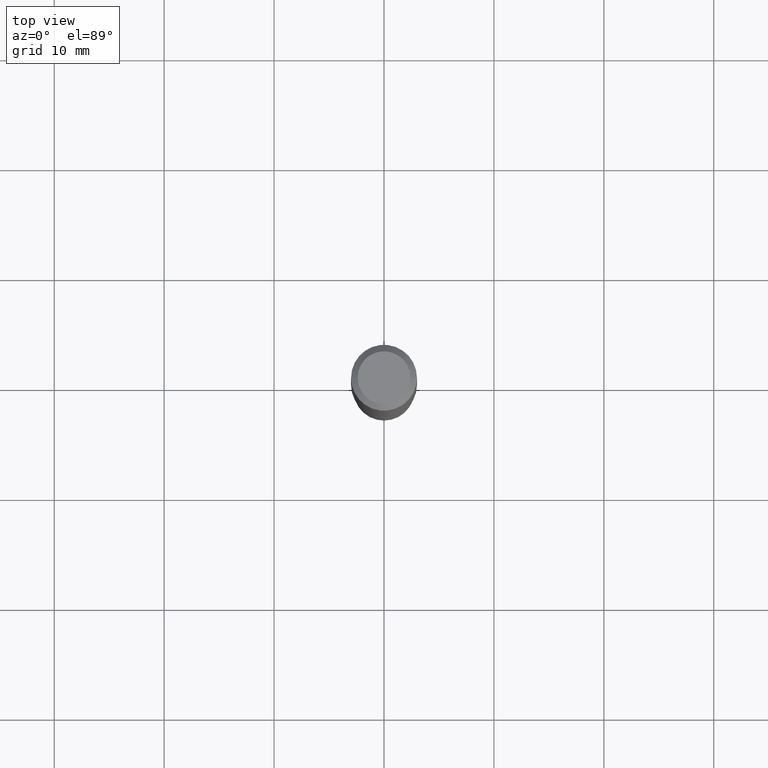
[diagram: clean part render]
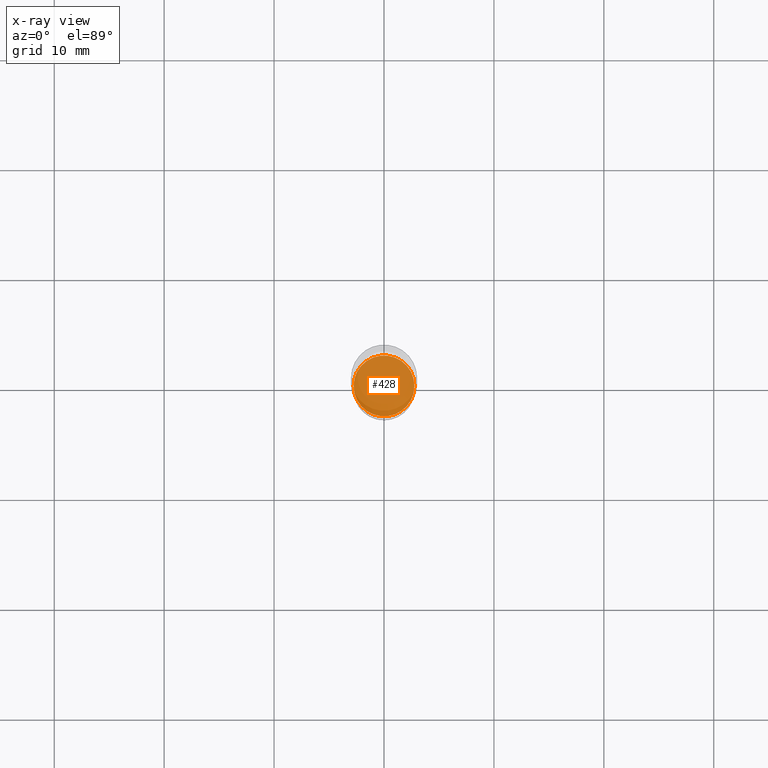
[diagram: x-ray — body ghosted, one internal face saturated and labeled with its STEP entity id]
A machine part, top view, then the same camera in x-ray: the body is ghosted and one INTERNAL B-rep face — a face not visible from any outside direction — is saturated and labeled: STEP entity #428.
In plain terms, the highlighted planar face has unit normal (-0, 0, 1).
Its self-contained STEP definition (entity closure, byte-faithful):
#3 = EDGE_CURVE ( 'NONE', #178, #109, #97, .T. ) ;
#8 = AXIS2_PLACEMENT_3D ( 'NONE', #412, #384, #194 ) ;
#30 = ORIENTED_EDGE ( 'NONE', *, *, #3, .F. ) ;
#42 = DIRECTION ( 'NONE',  ( 1.000000000000000000, -6.982962677686264344E-15, 0.000000000000000000 ) ) ;
#70 = AXIS2_PLACEMENT_3D ( 'NONE', #460, #303, #120 ) ;
#97 = CIRCLE ( 'NONE', #301, 0.1088999999999999968 ) ;
#109 = VERTEX_POINT ( 'NONE', #243 ) ;
#120 = DIRECTION ( 'NONE',  ( 1.000000000000000000, -6.982962677686264344E-15, 0.000000000000000000 ) ) ;
#178 = VERTEX_POINT ( 'NONE', #247 ) ;
#194 = DIRECTION ( 'NONE',  ( 1.000000000000000000, -6.982962677686265922E-15, 4.876176775795935793E-29 ) ) ;
#243 = CARTESIAN_POINT ( 'NONE',  ( -0.1088999999999999968, -5.210761933431365017E-15, -1.714799999999999880 ) ) ;
#247 = CARTESIAN_POINT ( 'NONE',  ( 0.1088999999999999968, -6.747636835448259862E-15, -1.714799999999999880 ) ) ;
#274 = PLANE ( 'NONE',  #8 ) ;
#301 = AXIS2_PLACEMENT_3D ( 'NONE', #305, #381, #42 ) ;
#303 = DIRECTION ( 'NONE',  ( -2.445468806185136597E-29, 3.491481338843145583E-15, 1.000000000000000000 ) ) ;
#305 = CARTESIAN_POINT ( 'NONE',  ( 4.193489908846272188E-29, -5.987192199848225298E-15, -1.714799999999999880 ) ) ;
#381 = DIRECTION ( 'NONE',  ( -2.445468806185136597E-29, 3.491481338843145583E-15, 1.000000000000000000 ) ) ;
#384 = DIRECTION ( 'NONE',  ( -2.438088387897960049E-29, 3.491481338843145188E-15, 1.000000000000000000 ) ) ;
#411 = EDGE_LOOP ( 'NONE', ( #30, #419 ) ) ;
#412 = CARTESIAN_POINT ( 'NONE',  ( 1.189614977930268288E-29, -1.028891207086335600E-14, -1.714799999999999880 ) ) ;
#419 = ORIENTED_EDGE ( 'NONE', *, *, #486, .F. ) ;
#428 = ADVANCED_FACE ( 'NONE', ( #452 ), #274, .F. ) ;
#452 = FACE_OUTER_BOUND ( 'NONE', #411, .T. ) ;
#460 = CARTESIAN_POINT ( 'NONE',  ( 4.193489908846272188E-29, -5.987192199848225298E-15, -1.714799999999999880 ) ) ;
#467 = CIRCLE ( 'NONE', #70, 0.1088999999999999968 ) ;
#486 = EDGE_CURVE ( 'NONE', #109, #178, #467, .T. ) ;